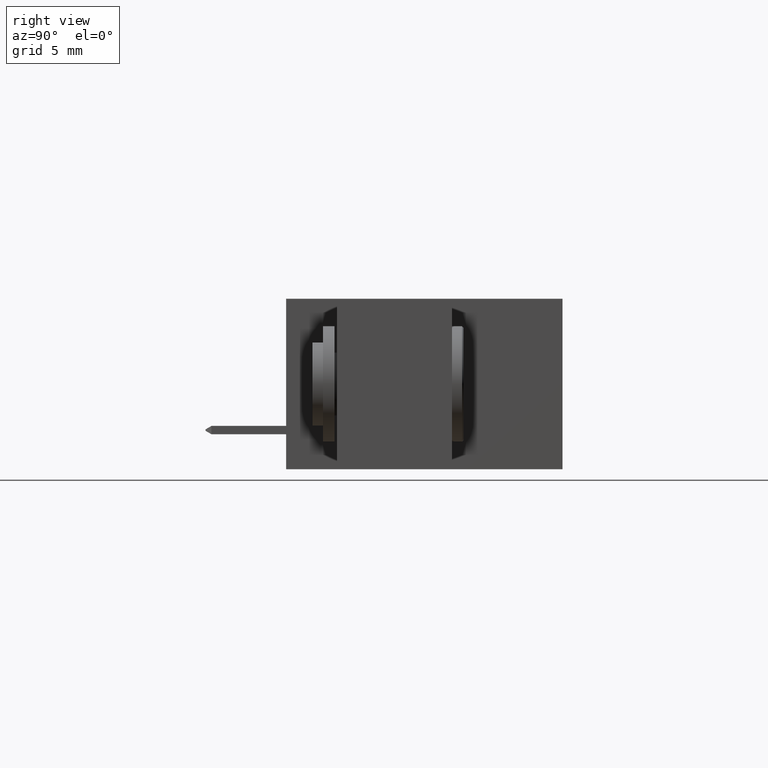
[diagram: clean part render]
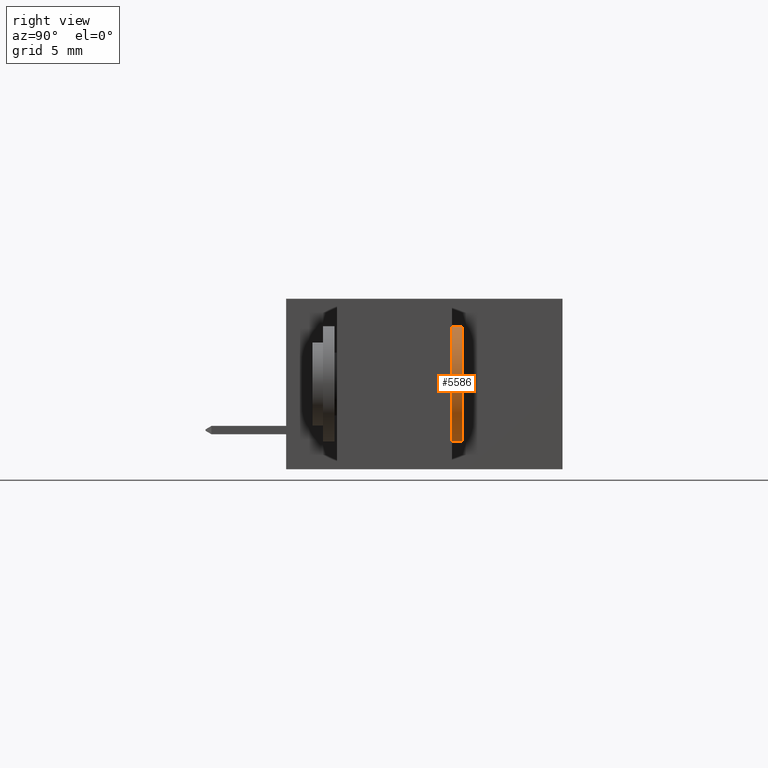
[diagram: same view with one face highlighted and labeled with its STEP entity id]
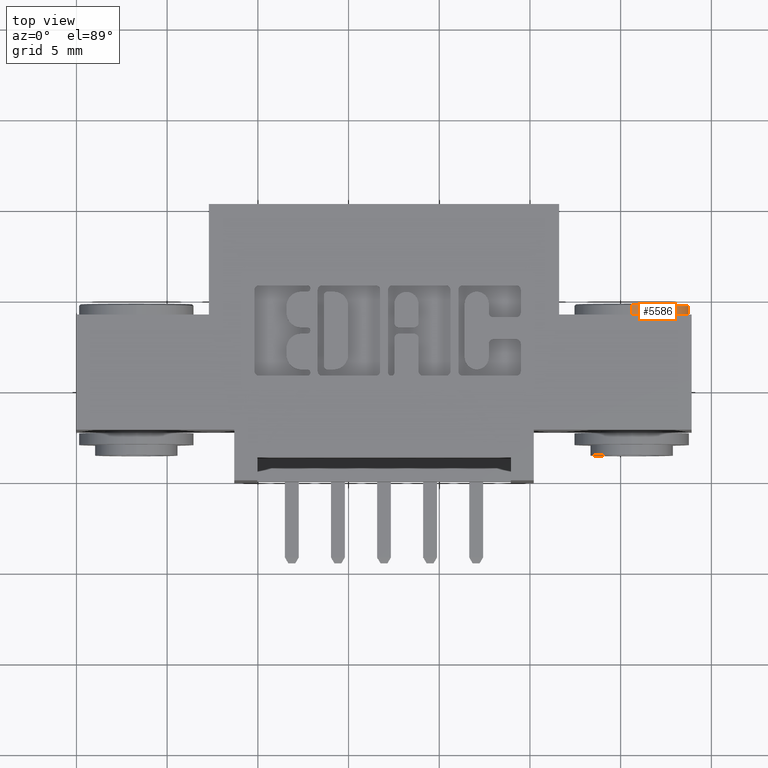
[diagram: same view with one face highlighted and labeled with its STEP entity id]
A machine part, right view. The second image highlights one B-rep face of the part: STEP entity #5586.
A second angle (top view) of the same face is appended — the face is thin or edge-on in the first view.
In plain terms, the highlighted cylindrical surface (partial cylindrical patch) has radius 3.175 mm, axis along (-0, 1, -0).
Its self-contained STEP definition (entity closure, byte-faithful):
#207 = FACE_OUTER_BOUND ( 'NONE', #9470, .T. ) ;
#874 = ORIENTED_EDGE ( 'NONE', *, *, #7794, .F. ) ;
#1535 = VECTOR ( 'NONE', #4316, 39.37007874015748100 ) ;
#1838 = EDGE_CURVE ( 'NONE', #6152, #6811, #5302, .T. ) ;
#1900 = VERTEX_POINT ( 'NONE', #4871 ) ;
#2367 = CARTESIAN_POINT ( 'NONE',  ( 3.137803094009424800E-034, 0.02500000000000000500, -0.1250000000000000600 ) ) ;
#2714 = LINE ( 'NONE', #3599, #1535 ) ;
#2721 = ORIENTED_EDGE ( 'NONE', *, *, #4941, .T. ) ;
#2765 = DIRECTION ( 'NONE',  ( -2.465190328815661900E-032, 1.000000000000000000, 0.0000000000000000000 ) ) ;
#3109 = EDGE_CURVE ( 'NONE', #1900, #3943, #8549, .T. ) ;
#3309 = VECTOR ( 'NONE', #4859, 39.37007874015748100 ) ;
#3500 = DIRECTION ( 'NONE',  ( 2.465190328815661900E-032, -1.000000000000000000, 0.0000000000000000000 ) ) ;
#3599 = CARTESIAN_POINT ( 'NONE',  ( 4.260937323121883100E-035, 0.02500000000000000500, -0.1250000000000000600 ) ) ;
#3943 = VERTEX_POINT ( 'NONE', #7623 ) ;
#4316 = DIRECTION ( 'NONE',  ( 2.465190328815661900E-032, -1.000000000000000000, 0.0000000000000000000 ) ) ;
#4463 = AXIS2_PLACEMENT_3D ( 'NONE', #6477, #2765, #5669 ) ;
#4549 = CYLINDRICAL_SURFACE ( 'NONE', #7612, 0.1250000000000000600 ) ;
#4835 = CARTESIAN_POINT ( 'NONE',  ( 1.530808498934192100E-017, 0.02500000000000000500, 0.1250000000000000600 ) ) ;
#4859 = DIRECTION ( 'NONE',  ( 2.465190328815661900E-032, -1.000000000000000000, 0.0000000000000000000 ) ) ;
#4871 = CARTESIAN_POINT ( 'NONE',  ( 3.137803094009424800E-034, 0.002999999999999940600, -0.1250000000000000600 ) ) ;
#4906 = CARTESIAN_POINT ( 'NONE',  ( 0.0000000000000000000, 0.02500000000000000500, 0.0000000000000000000 ) ) ;
#4941 = EDGE_CURVE ( 'NONE', #6152, #1900, #2714, .T. ) ;
#5302 = CIRCLE ( 'NONE', #9002, 0.1250000000000000600 ) ;
#5569 = DIRECTION ( 'NONE',  ( -2.465190328815661900E-032, 1.000000000000000000, 0.0000000000000000000 ) ) ;
#5586 = ADVANCED_FACE ( 'NONE', ( #207 ), #4549, .T. ) ;
#5669 = DIRECTION ( 'NONE',  ( -3.408749858497504800E-034, 0.0000000000000000000, 1.000000000000000000 ) ) ;
#6152 = VERTEX_POINT ( 'NONE', #2367 ) ;
#6280 = DIRECTION ( 'NONE',  ( -3.408749858497504800E-034, 0.0000000000000000000, 1.000000000000000000 ) ) ;
#6477 = CARTESIAN_POINT ( 'NONE',  ( 0.0000000000000000000, 0.002999999999999940600, 0.0000000000000000000 ) ) ;
#6709 = CARTESIAN_POINT ( 'NONE',  ( 1.530808498934192100E-017, 0.02500000000000000500, 0.1250000000000000600 ) ) ;
#6811 = VERTEX_POINT ( 'NONE', #6709 ) ;
#7345 = LINE ( 'NONE', #4835, #3309 ) ;
#7612 = AXIS2_PLACEMENT_3D ( 'NONE', #8053, #3500, #9549 ) ;
#7623 = CARTESIAN_POINT ( 'NONE',  ( 1.530808498934192100E-017, 0.002999999999999940600, 0.1250000000000000600 ) ) ;
#7794 = EDGE_CURVE ( 'NONE', #6811, #3943, #7345, .T. ) ;
#7976 = ORIENTED_EDGE ( 'NONE', *, *, #3109, .T. ) ;
#8053 = CARTESIAN_POINT ( 'NONE',  ( 0.0000000000000000000, 0.02500000000000000500, 0.0000000000000000000 ) ) ;
#8549 = CIRCLE ( 'NONE', #4463, 0.1250000000000000600 ) ;
#8715 = ORIENTED_EDGE ( 'NONE', *, *, #1838, .F. ) ;
#9002 = AXIS2_PLACEMENT_3D ( 'NONE', #4906, #5569, #6280 ) ;
#9470 = EDGE_LOOP ( 'NONE', ( #874, #8715, #2721, #7976 ) ) ;
#9549 = DIRECTION ( 'NONE',  ( 3.408749858497504800E-034, 0.0000000000000000000, -1.000000000000000000 ) ) ;